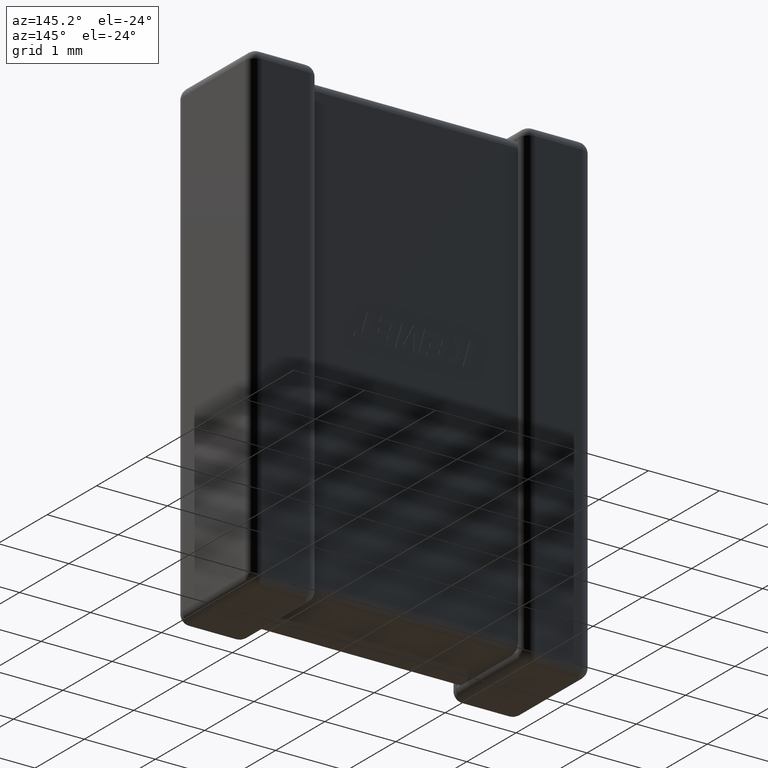
[diagram: clean part render]
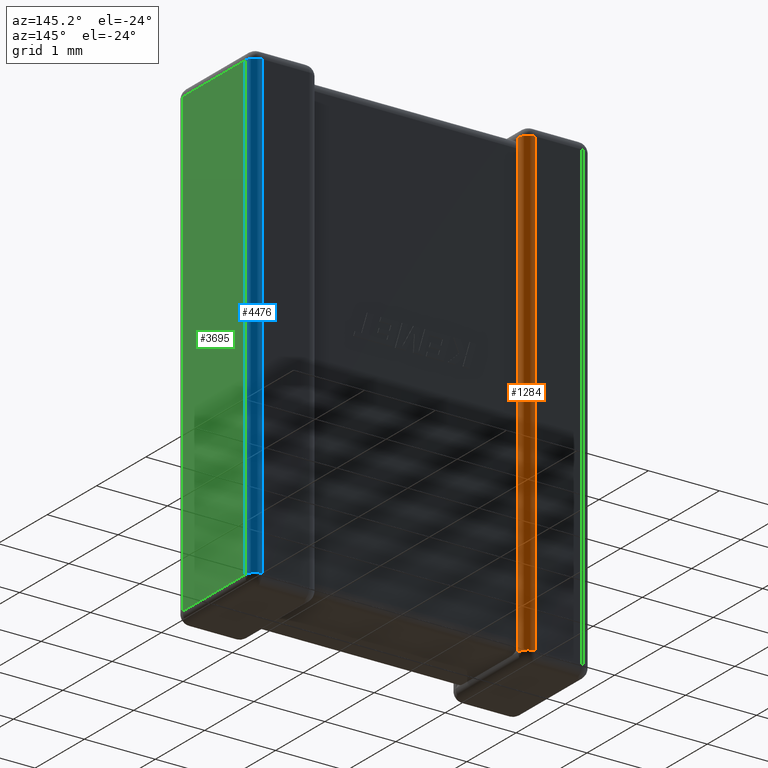
[diagram: same view with three faces highlighted in distinct colors, each labeled with its STEP entity id]
A machine part, auxiliary view with three faces highlighted in distinct colors.
Their STEP definitions:

[orange] entity #1284 — the highlighted cylindrical surface (edge-blend (fillet) strip) has radius 0.1414 mm, axis along (0, 0, 1).
#6 = VECTOR ( 'NONE', #1828, 1000.000000000000000 ) ;
#428 = VERTEX_POINT ( 'NONE', #4604 ) ;
#560 = EDGE_LOOP ( 'NONE', ( #1640, #2447, #3897, #3093, #2405, #2289 ) ) ;
#571 = DIRECTION ( 'NONE',  ( 0.0000000000000000000, -1.000000000000000000, 2.682909787683303000E-015 ) ) ;
#602 = AXIS2_PLACEMENT_3D ( 'NONE', #927, #2005, #571 ) ;
#667 = AXIS2_PLACEMENT_3D ( 'NONE', #823, #4382, #1874 ) ;
#823 = CARTESIAN_POINT ( 'NONE',  ( 0.8085600000000000600, 1.408559999999999600, -6.658560000000000500 ) ) ;
#927 = CARTESIAN_POINT ( 'NONE',  ( 0.8085600000000000600, 1.408559999999999600, -0.1414399999999996200 ) ) ;
#971 = FACE_OUTER_BOUND ( 'NONE', #560, .T. ) ;
#1047 = VERTEX_POINT ( 'NONE', #1395 ) ;
#1284 = ADVANCED_FACE ( 'NONE', ( #971 ), #3568, .T. ) ;
#1331 = VERTEX_POINT ( 'NONE', #2654 ) ;
#1367 = VERTEX_POINT ( 'NONE', #1985 ) ;
#1395 = CARTESIAN_POINT ( 'NONE',  ( 0.9500000000000000700, 1.408559999999999600, -6.517120000000001100 ) ) ;
#1443 = DIRECTION ( 'NONE',  ( 0.0000000000000000000, 0.0000000000000000000, 1.000000000000000000 ) ) ;
#1450 = CARTESIAN_POINT ( 'NONE',  ( 0.8085599999999998300, 1.549999999999999800, 0.0000000000000000000 ) ) ;
#1612 = DIRECTION ( 'NONE',  ( 0.0000000000000000000, 0.0000000000000000000, 1.000000000000000000 ) ) ;
#1640 = ORIENTED_EDGE ( 'NONE', *, *, #1972, .F. ) ;
#1646 = EDGE_CURVE ( 'NONE', #1331, #428, #3790, .T. ) ;
#1689 = LINE ( 'NONE', #4558, #4610 ) ;
#1828 = DIRECTION ( 'NONE',  ( -0.0000000000000000000, -0.0000000000000000000, -1.000000000000000000 ) ) ;
#1874 = DIRECTION ( 'NONE',  ( -1.000000000000000000, 0.0000000000000000000, 0.0000000000000000000 ) ) ;
#1972 = EDGE_CURVE ( 'NONE', #1367, #1047, #4122, .T. ) ;
#1985 = CARTESIAN_POINT ( 'NONE',  ( 0.9500000000000000700, 1.408559999999999600, -6.658560000000000500 ) ) ;
#2005 = DIRECTION ( 'NONE',  ( -4.113145673626780800E-030, 2.682909787683303000E-015, 1.000000000000000000 ) ) ;
#2289 = ORIENTED_EDGE ( 'NONE', *, *, #3487, .F. ) ;
#2405 = ORIENTED_EDGE ( 'NONE', *, *, #4083, .F. ) ;
#2425 = AXIS2_PLACEMENT_3D ( 'NONE', #4443, #1612, #3400 ) ;
#2432 = DIRECTION ( 'NONE',  ( 0.0000000000000000000, 0.0000000000000000000, 1.000000000000000000 ) ) ;
#2447 = ORIENTED_EDGE ( 'NONE', *, *, #3251, .F. ) ;
#2617 = VERTEX_POINT ( 'NONE', #3807 ) ;
#2640 = CIRCLE ( 'NONE', #667, 0.1414400000000000700 ) ;
#2654 = CARTESIAN_POINT ( 'NONE',  ( 0.8085600000000000600, 1.549999999999999800, -0.1414400000000000100 ) ) ;
#2814 = VECTOR ( 'NONE', #2432, 1000.000000000000000 ) ;
#2863 = EDGE_CURVE ( 'NONE', #3319, #1331, #4185, .T. ) ;
#3093 = ORIENTED_EDGE ( 'NONE', *, *, #2863, .F. ) ;
#3251 = EDGE_CURVE ( 'NONE', #428, #1367, #2640, .T. ) ;
#3319 = VERTEX_POINT ( 'NONE', #4077 ) ;
#3400 = DIRECTION ( 'NONE',  ( 1.000000000000000000, 0.0000000000000000000, 0.0000000000000000000 ) ) ;
#3487 = EDGE_CURVE ( 'NONE', #1047, #2617, #1689, .T. ) ;
#3568 = CYLINDRICAL_SURFACE ( 'NONE', #2425, 0.1414400000000000700 ) ;
#3594 = CARTESIAN_POINT ( 'NONE',  ( 0.9500000000000000700, 1.408559999999999600, -6.800000000000000700 ) ) ;
#3742 = VECTOR ( 'NONE', #1443, 1000.000000000000000 ) ;
#3790 = LINE ( 'NONE', #1450, #6 ) ;
#3807 = CARTESIAN_POINT ( 'NONE',  ( 0.9500000000000000700, 1.408559999999999600, -0.2828799999999992400 ) ) ;
#3897 = ORIENTED_EDGE ( 'NONE', *, *, #1646, .F. ) ;
#4077 = CARTESIAN_POINT ( 'NONE',  ( 0.9499999999999997300, 1.408559999999999600, -0.1414399999999996200 ) ) ;
#4083 = EDGE_CURVE ( 'NONE', #2617, #3319, #4134, .T. ) ;
#4122 = LINE ( 'NONE', #4570, #2814 ) ;
#4134 = LINE ( 'NONE', #3594, #3742 ) ;
#4185 = CIRCLE ( 'NONE', #602, 0.1414400000000000700 ) ;
#4382 = DIRECTION ( 'NONE',  ( 0.0000000000000000000, 0.0000000000000000000, -1.000000000000000000 ) ) ;
#4443 = CARTESIAN_POINT ( 'NONE',  ( 0.8085600000000000600, 1.408559999999999600, -6.800000000000000700 ) ) ;
#4558 = CARTESIAN_POINT ( 'NONE',  ( 0.9500000000000000700, 1.408559999999999600, -6.800000000000000700 ) ) ;
#4570 = CARTESIAN_POINT ( 'NONE',  ( 0.9500000000000000700, 1.408559999999999600, -6.800000000000000700 ) ) ;
#4585 = DIRECTION ( 'NONE',  ( -0.0000000000000000000, -0.0000000000000000000, 1.000000000000000000 ) ) ;
#4604 = CARTESIAN_POINT ( 'NONE',  ( 0.8085600000000000600, 1.549999999999999800, -6.658560000000000500 ) ) ;
#4610 = VECTOR ( 'NONE', #4585, 1000.000000000000000 ) ;

[blue] entity #4476 — the highlighted cylindrical surface (edge-blend (fillet) strip) has radius 0.1414 mm, axis along (0, 0, 1).
#32 = EDGE_CURVE ( 'NONE', #2625, #2416, #2108, .T. ) ;
#181 = FACE_OUTER_BOUND ( 'NONE', #2404, .T. ) ;
#295 = LINE ( 'NONE', #701, #3111 ) ;
#464 = EDGE_CURVE ( 'NONE', #845, #2416, #4145, .T. ) ;
#485 = VERTEX_POINT ( 'NONE', #2448 ) ;
#561 = AXIS2_PLACEMENT_3D ( 'NONE', #589, #4542, #4104 ) ;
#589 = CARTESIAN_POINT ( 'NONE',  ( 4.658559999999999600, 1.408559999999999600, -0.1414400000000000100 ) ) ;
#701 = CARTESIAN_POINT ( 'NONE',  ( 4.658559999999999600, 1.549999999999999800, 0.0000000000000000000 ) ) ;
#845 = VERTEX_POINT ( 'NONE', #2678 ) ;
#899 = DIRECTION ( 'NONE',  ( -1.000000000000000000, 0.0000000000000000000, 0.0000000000000000000 ) ) ;
#1025 = DIRECTION ( 'NONE',  ( 0.0000000000000000000, 0.0000000000000000000, 1.000000000000000000 ) ) ;
#1335 = VECTOR ( 'NONE', #2778, 1000.000000000000000 ) ;
#1679 = DIRECTION ( 'NONE',  ( 1.000000000000000000, 0.0000000000000000000, 0.0000000000000000000 ) ) ;
#1764 = CARTESIAN_POINT ( 'NONE',  ( 4.799999999999999800, 1.408559999999999600, -0.1414400000000000100 ) ) ;
#1990 = DIRECTION ( 'NONE',  ( -0.0000000000000000000, -0.0000000000000000000, 1.000000000000000000 ) ) ;
#2108 = CIRCLE ( 'NONE', #561, 0.1414399999999996200 ) ;
#2404 = EDGE_LOOP ( 'NONE', ( #3825, #2967, #4008, #2571 ) ) ;
#2416 = VERTEX_POINT ( 'NONE', #1764 ) ;
#2448 = CARTESIAN_POINT ( 'NONE',  ( 4.658559999999999600, 1.549999999999999800, -6.658560000000000500 ) ) ;
#2502 = DIRECTION ( 'NONE',  ( -0.0000000000000000000, -0.0000000000000000000, -1.000000000000000000 ) ) ;
#2571 = ORIENTED_EDGE ( 'NONE', *, *, #464, .F. ) ;
#2625 = VERTEX_POINT ( 'NONE', #3518 ) ;
#2678 = CARTESIAN_POINT ( 'NONE',  ( 4.799999999999999800, 1.408559999999999600, -6.658560000000000500 ) ) ;
#2778 = DIRECTION ( 'NONE',  ( 0.0000000000000000000, 0.0000000000000000000, 1.000000000000000000 ) ) ;
#2932 = AXIS2_PLACEMENT_3D ( 'NONE', #4132, #1990, #899 ) ;
#2967 = ORIENTED_EDGE ( 'NONE', *, *, #4150, .F. ) ;
#3111 = VECTOR ( 'NONE', #2502, 1000.000000000000000 ) ;
#3494 = CARTESIAN_POINT ( 'NONE',  ( 4.799999999999999800, 1.408559999999999600, 0.0000000000000000000 ) ) ;
#3501 = CARTESIAN_POINT ( 'NONE',  ( 4.658559999999999600, 1.408559999999999600, 0.0000000000000000000 ) ) ;
#3518 = CARTESIAN_POINT ( 'NONE',  ( 4.658559999999999600, 1.549999999999999800, -0.1414400000000000100 ) ) ;
#3825 = ORIENTED_EDGE ( 'NONE', *, *, #3833, .T. ) ;
#3833 = EDGE_CURVE ( 'NONE', #845, #485, #3917, .T. ) ;
#3917 = CIRCLE ( 'NONE', #2932, 0.1414399999999996200 ) ;
#4008 = ORIENTED_EDGE ( 'NONE', *, *, #32, .T. ) ;
#4104 = DIRECTION ( 'NONE',  ( 1.000000000000000000, 0.0000000000000000000, 0.0000000000000000000 ) ) ;
#4132 = CARTESIAN_POINT ( 'NONE',  ( 4.658559999999999600, 1.408559999999999600, -6.658560000000000500 ) ) ;
#4145 = LINE ( 'NONE', #3494, #1335 ) ;
#4150 = EDGE_CURVE ( 'NONE', #2625, #485, #295, .T. ) ;
#4248 = CYLINDRICAL_SURFACE ( 'NONE', #4653, 0.1414399999999996200 ) ;
#4476 = ADVANCED_FACE ( 'NONE', ( #181 ), #4248, .T. ) ;
#4542 = DIRECTION ( 'NONE',  ( -0.0000000000000000000, -0.0000000000000000000, -1.000000000000000000 ) ) ;
#4653 = AXIS2_PLACEMENT_3D ( 'NONE', #3501, #1025, #1679 ) ;

[green] entity #3695 — the highlighted planar face has unit normal (-1, 0, 0).
#249 = CARTESIAN_POINT ( 'NONE',  ( 4.799999999999999800, 0.0000000000000000000, -0.1414400000000000100 ) ) ;
#399 = PLANE ( 'NONE',  #858 ) ;
#431 = CARTESIAN_POINT ( 'NONE',  ( 4.799999999999999800, 0.0000000000000000000, 0.0000000000000000000 ) ) ;
#441 = ORIENTED_EDGE ( 'NONE', *, *, #464, .T. ) ;
#464 = EDGE_CURVE ( 'NONE', #845, #2416, #4145, .T. ) ;
#468 = VECTOR ( 'NONE', #703, 1000.000000000000000 ) ;
#469 = LINE ( 'NONE', #249, #1140 ) ;
#490 = CARTESIAN_POINT ( 'NONE',  ( 4.799999999999999800, 0.1414400000000000100, -6.658560000000000500 ) ) ;
#703 = DIRECTION ( 'NONE',  ( 0.0000000000000000000, 0.0000000000000000000, -1.000000000000000000 ) ) ;
#845 = VERTEX_POINT ( 'NONE', #2678 ) ;
#858 = AXIS2_PLACEMENT_3D ( 'NONE', #431, #1855, #2945 ) ;
#968 = EDGE_CURVE ( 'NONE', #1740, #1289, #3682, .T. ) ;
#1051 = ORIENTED_EDGE ( 'NONE', *, *, #1402, .T. ) ;
#1140 = VECTOR ( 'NONE', #1800, 1000.000000000000000 ) ;
#1260 = DIRECTION ( 'NONE',  ( 0.0000000000000000000, 1.000000000000000000, -0.0000000000000000000 ) ) ;
#1289 = VERTEX_POINT ( 'NONE', #490 ) ;
#1335 = VECTOR ( 'NONE', #2778, 1000.000000000000000 ) ;
#1402 = EDGE_CURVE ( 'NONE', #1289, #845, #2541, .T. ) ;
#1426 = EDGE_LOOP ( 'NONE', ( #1051, #441, #4428, #2483 ) ) ;
#1740 = VERTEX_POINT ( 'NONE', #4307 ) ;
#1764 = CARTESIAN_POINT ( 'NONE',  ( 4.799999999999999800, 1.408559999999999600, -0.1414400000000000100 ) ) ;
#1800 = DIRECTION ( 'NONE',  ( 0.0000000000000000000, -1.000000000000000000, 0.0000000000000000000 ) ) ;
#1855 = DIRECTION ( 'NONE',  ( -1.000000000000000000, 0.0000000000000000000, 0.0000000000000000000 ) ) ;
#1997 = FACE_OUTER_BOUND ( 'NONE', #1426, .T. ) ;
#2416 = VERTEX_POINT ( 'NONE', #1764 ) ;
#2483 = ORIENTED_EDGE ( 'NONE', *, *, #968, .T. ) ;
#2485 = CARTESIAN_POINT ( 'NONE',  ( 4.799999999999999800, 0.1414400000000000100, 0.0000000000000000000 ) ) ;
#2541 = LINE ( 'NONE', #3075, #3505 ) ;
#2678 = CARTESIAN_POINT ( 'NONE',  ( 4.799999999999999800, 1.408559999999999600, -6.658560000000000500 ) ) ;
#2778 = DIRECTION ( 'NONE',  ( 0.0000000000000000000, 0.0000000000000000000, 1.000000000000000000 ) ) ;
#2945 = DIRECTION ( 'NONE',  ( 0.0000000000000000000, 0.0000000000000000000, 1.000000000000000000 ) ) ;
#3075 = CARTESIAN_POINT ( 'NONE',  ( 4.799999999999999800, 0.0000000000000000000, -6.658560000000000500 ) ) ;
#3494 = CARTESIAN_POINT ( 'NONE',  ( 4.799999999999999800, 1.408559999999999600, 0.0000000000000000000 ) ) ;
#3505 = VECTOR ( 'NONE', #1260, 1000.000000000000000 ) ;
#3682 = LINE ( 'NONE', #2485, #468 ) ;
#3695 = ADVANCED_FACE ( 'NONE', ( #1997 ), #399, .F. ) ;
#4064 = EDGE_CURVE ( 'NONE', #2416, #1740, #469, .T. ) ;
#4145 = LINE ( 'NONE', #3494, #1335 ) ;
#4307 = CARTESIAN_POINT ( 'NONE',  ( 4.799999999999999800, 0.1414400000000000100, -0.1414400000000000100 ) ) ;
#4428 = ORIENTED_EDGE ( 'NONE', *, *, #4064, .T. ) ;